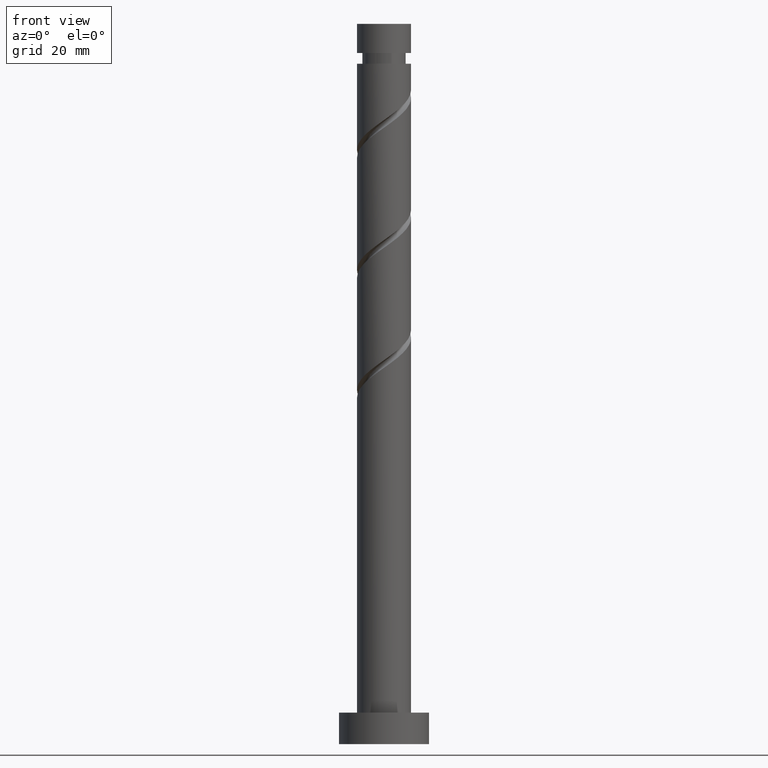
[diagram: clean part render]
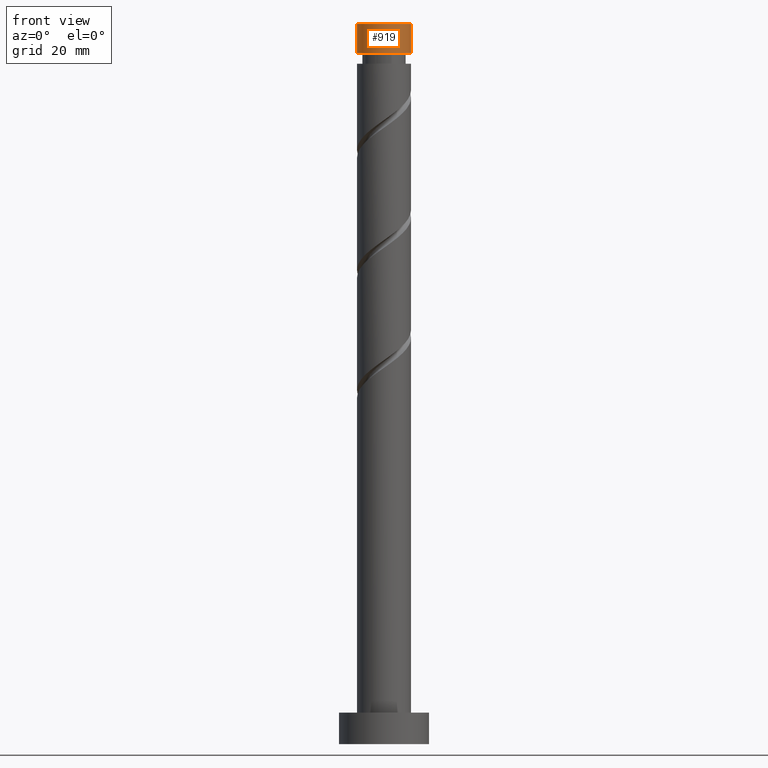
[diagram: same view with one face highlighted and labeled with its STEP entity id]
A machine part, front view. The second image highlights one B-rep face of the part: STEP entity #919.
In plain terms, the highlighted cylindrical surface (edge-blend (fillet) strip) has radius 6 mm, axis along (-0, -0, -1).
Its self-contained STEP definition (entity closure, byte-faithful):
#15 = DIRECTION ( 'NONE',  ( -0.000000000000000000, -0.000000000000000000, -1.000000000000000000 ) ) ;
#49 = EDGE_LOOP ( 'NONE', ( #472, #1583, #1571, #985 ) ) ;
#71 = DIRECTION ( 'NONE',  ( 1.000000000000000000, 0.000000000000000000, 0.000000000000000000 ) ) ;
#110 = VERTEX_POINT ( 'NONE', #630 ) ;
#139 = FACE_OUTER_BOUND ( 'NONE', #49, .T. ) ;
#175 = EDGE_CURVE ( 'NONE', #1159, #110, #841, .T. ) ;
#180 = CARTESIAN_POINT ( 'NONE',  ( 0.000000000000000000, 0.000000000000000000, 160.0000000000000000 ) ) ;
#200 = AXIS2_PLACEMENT_3D ( 'NONE', #180, #1504, #71 ) ;
#244 = LINE ( 'NONE', #572, #513 ) ;
#250 = EDGE_CURVE ( 'NONE', #1159, #318, #1428, .T. ) ;
#262 = DIRECTION ( 'NONE',  ( -0.000000000000000000, -0.000000000000000000, -1.000000000000000000 ) ) ;
#318 = VERTEX_POINT ( 'NONE', #874 ) ;
#377 = DIRECTION ( 'NONE',  ( -0.000000000000000000, -0.000000000000000000, -1.000000000000000000 ) ) ;
#472 = ORIENTED_EDGE ( 'NONE', *, *, #1299, .F. ) ;
#489 = CIRCLE ( 'NONE', #813, 5.999999999999994671 ) ;
#513 = VECTOR ( 'NONE', #377, 1000.000000000000000 ) ;
#572 = CARTESIAN_POINT ( 'NONE',  ( 6.000000000000000888, 7.347880794884120722E-16, 160.0000000000000000 ) ) ;
#630 = CARTESIAN_POINT ( 'NONE',  ( 6.000000000000000888, 7.347880794884120722E-16, 160.0000000000000000 ) ) ;
#683 = CARTESIAN_POINT ( 'NONE',  ( -6.000000000000000888, 0.000000000000000000, 160.0000000000000000 ) ) ;
#813 = AXIS2_PLACEMENT_3D ( 'NONE', #1427, #15, #881 ) ;
#841 = CIRCLE ( 'NONE', #200, 6.000000000000000888 ) ;
#874 = CARTESIAN_POINT ( 'NONE',  ( -5.999999999999994671, 0.000000000000000000, 153.5219275888623258 ) ) ;
#881 = DIRECTION ( 'NONE',  ( -1.000000000000000000, 0.000000000000000000, 0.000000000000000000 ) ) ;
#900 = CARTESIAN_POINT ( 'NONE',  ( -6.000000000000000888, 0.000000000000000000, 160.0000000000000000 ) ) ;
#911 = EDGE_CURVE ( 'NONE', #1380, #318, #489, .T. ) ;
#919 = ADVANCED_FACE ( 'NONE', ( #139 ), #1038, .T. ) ;
#985 = ORIENTED_EDGE ( 'NONE', *, *, #911, .F. ) ;
#1020 = DIRECTION ( 'NONE',  ( -0.000000000000000000, -0.000000000000000000, -1.000000000000000000 ) ) ;
#1036 = AXIS2_PLACEMENT_3D ( 'NONE', #1525, #1020, #1285 ) ;
#1038 = CYLINDRICAL_SURFACE ( 'NONE', #1036, 6.000000000000000888 ) ;
#1136 = VECTOR ( 'NONE', #262, 1000.000000000000000 ) ;
#1159 = VERTEX_POINT ( 'NONE', #683 ) ;
#1285 = DIRECTION ( 'NONE',  ( -1.000000000000000000, 0.000000000000000000, 0.000000000000000000 ) ) ;
#1299 = EDGE_CURVE ( 'NONE', #110, #1380, #244, .T. ) ;
#1380 = VERTEX_POINT ( 'NONE', #1401 ) ;
#1401 = CARTESIAN_POINT ( 'NONE',  ( 5.999999999999994671, 7.347880794884116778E-16, 153.5219275888623258 ) ) ;
#1427 = CARTESIAN_POINT ( 'NONE',  ( 0.000000000000000000, 0.000000000000000000, 153.5219275888623258 ) ) ;
#1428 = LINE ( 'NONE', #900, #1136 ) ;
#1504 = DIRECTION ( 'NONE',  ( 0.000000000000000000, 0.000000000000000000, 1.000000000000000000 ) ) ;
#1525 = CARTESIAN_POINT ( 'NONE',  ( 0.000000000000000000, 0.000000000000000000, 160.0000000000000000 ) ) ;
#1571 = ORIENTED_EDGE ( 'NONE', *, *, #250, .T. ) ;
#1583 = ORIENTED_EDGE ( 'NONE', *, *, #175, .F. ) ;